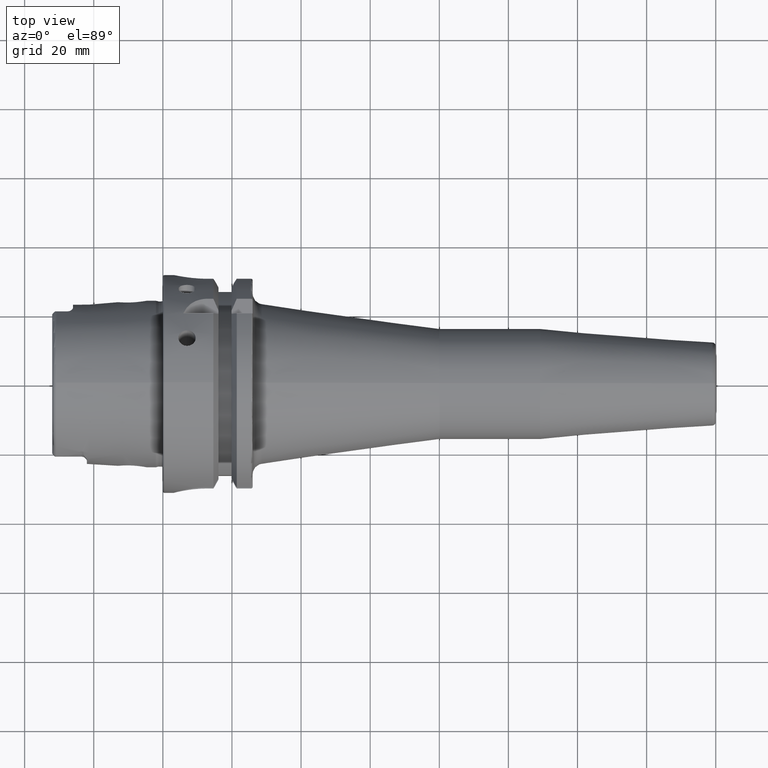
[diagram: clean part render]
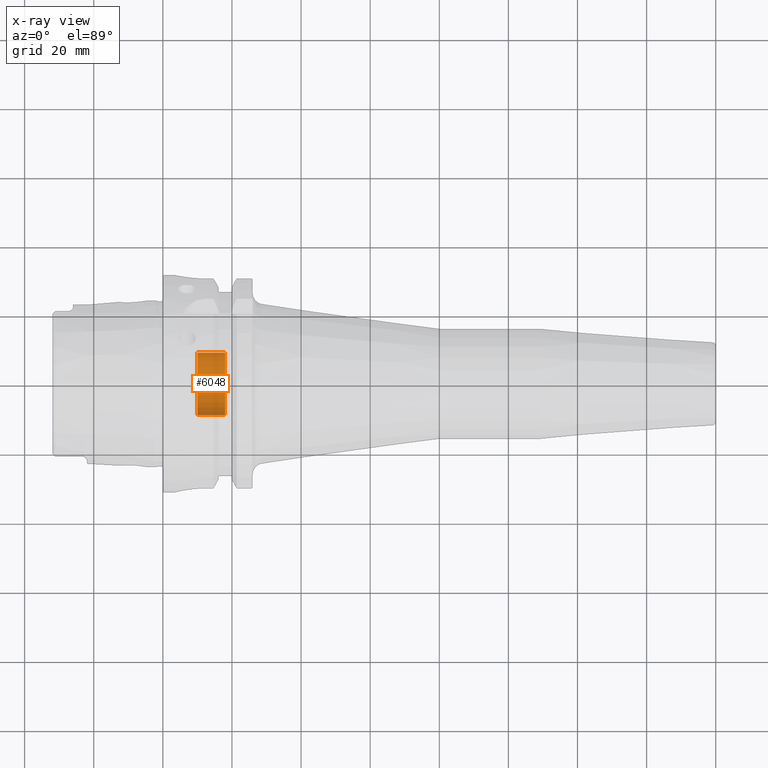
[diagram: x-ray — body ghosted, one internal face saturated and labeled with its STEP entity id]
A machine part, top view, then the same camera in x-ray: the body is ghosted and one INTERNAL B-rep face — a face not visible from any outside direction — is saturated and labeled: STEP entity #6048.
In plain terms, the highlighted cylindrical surface (edge-blend (fillet) strip) has radius 9 mm, axis along (-1, 0, 0).
Its self-contained STEP definition (entity closure, byte-faithful):
#5983=CARTESIAN_POINT('',(1.E1,0.E0,0.E0));
#5984=DIRECTION('',(1.E0,0.E0,0.E0));
#5985=DIRECTION('',(0.E0,-1.E0,0.E0));
#5986=AXIS2_PLACEMENT_3D('',#5983,#5984,#5985);
#5993=DIRECTION('',(1.E0,0.E0,0.E0));
#5994=VECTOR('',#5993,8.E0);
#5995=CARTESIAN_POINT('',(1.E1,-9.E0,0.E0));
#5996=LINE('',#5995,#5994);
#5997=DIRECTION('',(1.E0,0.E0,0.E0));
#5998=VECTOR('',#5997,8.E0);
#5999=CARTESIAN_POINT('',(1.E1,9.E0,0.E0));
#6000=LINE('',#5999,#5998);
#6006=CARTESIAN_POINT('',(1.8E1,0.E0,0.E0));
#6007=DIRECTION('',(-1.E0,0.E0,0.E0));
#6008=DIRECTION('',(0.E0,1.E0,0.E0));
#6009=AXIS2_PLACEMENT_3D('',#6006,#6007,#6008);
#6021=CARTESIAN_POINT('',(1.8E1,9.E0,0.E0));
#6022=CARTESIAN_POINT('',(1.8E1,-9.E0,0.E0));
#6023=VERTEX_POINT('',#6021);
#6024=VERTEX_POINT('',#6022);
#6025=CARTESIAN_POINT('',(1.E1,9.E0,0.E0));
#6026=CARTESIAN_POINT('',(1.E1,-9.E0,0.E0));
#6027=VERTEX_POINT('',#6025);
#6028=VERTEX_POINT('',#6026);
#6033=CARTESIAN_POINT('',(2.376268102482E1,0.E0,0.E0));
#6034=DIRECTION('',(-1.E0,0.E0,0.E0));
#6035=DIRECTION('',(0.E0,1.E0,0.E0));
#6036=AXIS2_PLACEMENT_3D('',#6033,#6034,#6035);
#6037=CYLINDRICAL_SURFACE('',#6036,9.E0);
#6039=ORIENTED_EDGE('',*,*,#6038,.T.);
#6041=ORIENTED_EDGE('',*,*,#6040,.T.);
#6043=ORIENTED_EDGE('',*,*,#6042,.T.);
#6045=ORIENTED_EDGE('',*,*,#6044,.F.);
#6046=EDGE_LOOP('',(#6039,#6041,#6043,#6045));
#6047=FACE_OUTER_BOUND('',#6046,.F.);
#6048=ADVANCED_FACE('',(#6047),#6037,.F.);
#5987=CIRCLE('',#5986,9.E0);
#6010=CIRCLE('',#6009,9.E0);
#6038=EDGE_CURVE('',#6028,#6027,#5987,.T.);
#6040=EDGE_CURVE('',#6027,#6023,#6000,.T.);
#6042=EDGE_CURVE('',#6023,#6024,#6010,.T.);
#6044=EDGE_CURVE('',#6028,#6024,#5996,.T.);